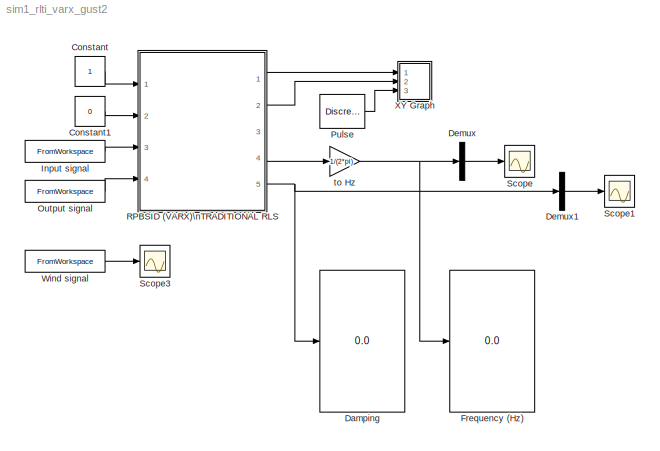
MODEL sim1_rlti_varx_gust2
KIND model
CONFIG InitFcn = load GUST2data.mat\nu = [(0:0.05:(length(u)-1)*0.05)' u'];\ny = [(0:0.05:(length(u)-1)*0.05)' y'];\nvw = [(0:0.05:(length(u)-1)*0.05)' vw'];\nload GUST2weight_f50.mat\nW = W0;
BLOCK [Constant] Constant
  OutDataType = fixdt(1, 16)
  OutScaling = 2^0
  SID = 2
BLOCK [Constant] Constant1
  OutDataType = fixdt(1, 16)
  OutScaling = 2^0
  SID = 25
  Value = 0
BLOCK [Display] Damping
  Decimation = 1
  Lockdown = off
  Ports = [1]
  SID = 6
BLOCK [Demux] Demux
  DisplayOption = bar
  Outputs = [3 1 3]
  Ports = [1, 3]
  SID = 11
BLOCK [Demux] Demux1
  DisplayOption = bar
  Outputs = [3 1 3]
  Ports = [1, 3]
  SID = 12
BLOCK [Display] Frequency (Hz)
  Decimation = 1
  Lockdown = off
  Ports = [1]
  SID = 7
BLOCK [FromWorkspace] Input signal
  OutputAfterFinalValue = Setting to zero
  SID = 3
  SampleTime = 0.05
  VariableName = u
  ZeroCross = on
BLOCK [FromWorkspace] Output signal
  OutputAfterFinalValue = Setting to zero
  SID = 4
  SampleTime = 0.05
  VariableName = y
  ZeroCross = on
BLOCK [DiscretePulseGenerator] Pulse
  Amplitude = 1
  Period = 15
  PhaseDelay = 0
  Ports = [0, 1]
  PulseType = Time based
  PulseWidth = 50
  SID = 17
  SampleTime = 1
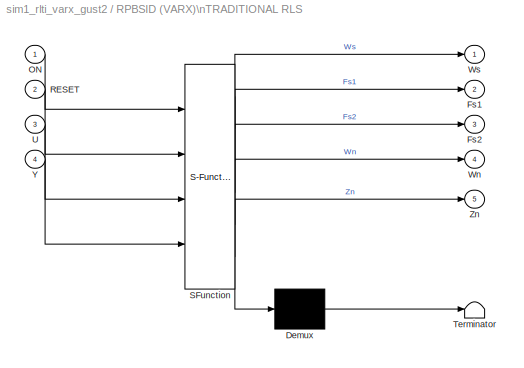
BLOCK [SubSystem] RPBSID (VARX)\nTRADITIONAL RLS
  FunctionWithSeparateData = off
  MaskDescription = Embedded MATLAB block
  MaskDisplay = disp('rpbsid');
  MaskHideContents = off
  MaskIconFrame = on
  MaskIconOpaque = off
  MaskIconRotate = none
  MaskIconUnits = autoscale
  MaskPortRotate = default
  MaskSelfModifiable = on
  MaskType = Stateflow
  MinAlgLoopOccurrences = off
  Opaque = off
  PermitHierarchicalResolution = ExplicitOnly
  Ports = [4, 5]
  PropExecContextOutsideSubsystem = off
  RTWSystemCode = Auto
  RequestExecContextInheritance = off
  SID = 1
BLOCK [Demux] RPBSID (VARX)\nTRADITIONAL RLS/ Demux 
  Outputs = 1
  Ports = [1, 1]
  SID = 19
BLOCK [S-Function] RPBSID (VARX)\nTRADITIONAL RLS/ SFunction 
  EnableBusSupport = on
  FunctionName = sf_sfun
  Parameters = Du,Dy,W
  PortCounts = [4 6]
  Ports = [4, 6]
  SID = 18
  Tag = Stateflow S-Function sim1_rlti_varx_gust2 2
BLOCK [Terminator] RPBSID (VARX)\nTRADITIONAL RLS/ Terminator 
  SID = 21
BLOCK [Outport] RPBSID (VARX)\nTRADITIONAL RLS/Fs1
  IconDisplay = Port number
  Port = 2
  SID = 10
BLOCK [Outport] RPBSID (VARX)\nTRADITIONAL RLS/Fs2
  IconDisplay = Port number
  Port = 3
  SID = 11
BLOCK [Inport] RPBSID (VARX)\nTRADITIONAL RLS/ON
  IconDisplay = Port number
  SID = 24
BLOCK [Inport] RPBSID (VARX)\nTRADITIONAL RLS/RESET
  IconDisplay = Port number
  Port = 2
  SID = 26
BLOCK [Inport] RPBSID (VARX)\nTRADITIONAL RLS/U
  IconDisplay = Port number
  OutDataType = sfix(16)
  OutScaling = 2^0
  Port = 3
  SID = 1
BLOCK [Outport] RPBSID (VARX)\nTRADITIONAL RLS/Wn
  IconDisplay = Port number
  OutDataType = sfix(16)
  OutScaling = 2^0
  Port = 4
  SID = 12
BLOCK [Outport] RPBSID (VARX)\nTRADITIONAL RLS/Ws
  IconDisplay = Port number
  SID = 9
BLOCK [Inport] RPBSID (VARX)\nTRADITIONAL RLS/Y
  IconDisplay = Port number
  OutDataType = sfix(16)
  OutScaling = 2^0
  Port = 4
  SID = 2
BLOCK [Outport] RPBSID (VARX)\nTRADITIONAL RLS/Zn
  IconDisplay = Port number
  OutDataType = sfix(16)
  OutScaling = 2^0
  Port = 5
  SID = 13
BLOCK [Scope] Scope
  DataFormat = StructureWithTime
  Floating = off
  NumInputPorts = 1
  Ports = [1]
  SID = 9
  SampleTime = 0
  YMax = 140
  YMin = 0
BLOCK [Scope] Scope1
  DataFormat = StructureWithTime
  Floating = off
  NumInputPorts = 1
  Ports = [1]
  SID = 13
  SampleTime = 0
  SaveName = ScopeData1
  YMax = 1
  YMin = -0.2
  ZoomMode = yonly
BLOCK [Scope] Scope3
  DataFormat = StructureWithTime
  Floating = off
  NumInputPorts = 1
  Ports = [1]
  SID = 21
  SampleTime = 0
  SaveName = ScopeData3
  TimeRange = 2000
  YMax = 14
  YMin = 7.5
BLOCK [FromWorkspace] Wind signal
  OutputAfterFinalValue = Setting to zero
  SID = 22
  SampleTime = 0.05
  VariableName = vw
  ZeroCross = on
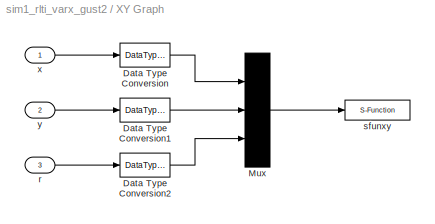
BLOCK [SubSystem] XY Graph
  AncestorBlock = simulink/Sinks/XY Graph
  CopyFcn = sfunxy([],[],[],'CopyBlock')
  DeleteFcn = sfunxy([],[],[],'DeleteBlock')
  FunctionWithSeparateData = off
  LoadFcn = sfunxy([],[],[],'LoadBlock')
  MaskCallbackString = ||||
  MaskCapabilities = slmaskedcaps(gcbh)
  MaskDescription = Plots second input (Y) against first input (X) at each time step to  create an X-Y plot. Ignores data outside the ranges specified by x-min, x-max, y-min, y-max.
  MaskDisplay = plot([.05 .95 .95 .05 .05],[.45 .45 .95 .95 .45], 0.5+cos(0:0.1:2*pi)*0.3,0.7+sin(0:0.1:2*pi)*0.2)
  MaskEnableString = on,on,on,on,on
  MaskHelp = This block can be used to explore limit cycles. Look at the m-file sfunxy.m to see how it works.
  MaskHideContents = off
  MaskIconFrame = on
  MaskIconOpaque = on
  MaskIconRotate = none
  MaskIconUnits = normalized
  MaskPortRotate = default
  MaskPromptString = x-min:|x-max:|y-min:|y-max:|Sample time:
  MaskSelfModifiable = on
  MaskStyleString = edit,edit,edit,edit,edit
  MaskToolTipString = on,on,on,on,on
  MaskTunableValueString = on,on,on,on,on
  MaskType = XY scope.
  MaskValueString = -1|1|-70|-20|-1
  MaskVariables = xmin=@1;xmax=@2;ymin=@3;ymax=@4;st=@5;
  MaskVisibilityString = on,on,on,on,on
  MinAlgLoopOccurrences = off
  NameChangeFcn = sfunxy([],[],[],'NameChange')
  Opaque = off
  Ports = [3]
  PropExecContextOutsideSubsystem = off
  RTWSystemCode = Auto
  RequestExecContextInheritance = off
  SID = 19
  SimViewingDevice = on
  StartFcn = sfunxy([],[],[],'Start')
  StopFcn = sfunxy([],[],[],'Stop')
  TreatAsAtomicUnit = on
BLOCK [DataTypeConversion] XY Graph/Data Type Conversion
  DisableCoverage = on
  OutDataType = fixdt(1, 16)
  OutDataTypeMode = double
  OutDataTypeStr = double
  OutScaling = 2^0
  RndMeth = Floor
  SID = 4
  SaturateOnIntegerOverflow = off
BLOCK [DataTypeConversion] XY Graph/Data Type Conversion1
  DisableCoverage = on
  OutDataType = fixdt(1, 16)
  OutDataTypeMode = double
  OutDataTypeStr = double
  OutScaling = 2^0
  RndMeth = Floor
  SID = 5
  SaturateOnIntegerOverflow = off
BLOCK [DataTypeConversion] XY Graph/Data Type Conversion2
  DisableCoverage = on
  OutDataType = fixdt(1, 16)
  OutDataTypeMode = double
  OutDataTypeStr = double
  OutScaling = 2^0
  RndMeth = Floor
  SID = 6
  SaturateOnIntegerOverflow = off
BLOCK [Mux] XY Graph/Mux
  Inputs = 3
  Ports = [3, 1]
  SID = 7
BLOCK [Inport] XY Graph/r
  IconDisplay = Port number
  OutDataType = fixdt(1, 16)
  OutScaling = 2^0
  Port = 3
  SID = 3
BLOCK [S-Function] XY Graph/sfunxy
  DisableCoverage = on
  EnableBusSupport = off
  FunctionName = sfun_xygraph
  Parameters = [xmin xmax ymin ymax], st
  Ports = [1]
  SID = 8
BLOCK [Inport] XY Graph/x
  IconDisplay = Port number
  OutDataType = fixdt(1, 16)
  OutScaling = 2^0
  SID = 1
BLOCK [Inport] XY Graph/y
  IconDisplay = Port number
  OutDataType = fixdt(1, 16)
  OutScaling = 2^0
  Port = 2
  SID = 2
BLOCK [Gain] to Hz
  Gain = 1/(2*pi)
  OutDataType = fixdt(1, 16)
  OutDataTypeMode = Inherit via internal rule
  OutDataTypeStr = Inherit: Inherit via internal rule
  OutScaling = 2^0
  ParamDataTypeStr = Inherit: Inherit via internal rule
  ParameterDataType = fixdt(1, 16)
  ParameterDataTypeMode = Inherit via internal rule
  ParameterScaling = 2^0
  SID = 23
  SaturateOnIntegerOverflow = off
LINE Constant1:1 -> RPBSID (VARX)\nTRADITIONAL RLS:2
LINE Constant:1 -> RPBSID (VARX)\nTRADITIONAL RLS:1
LINE Demux1:2 -> Scope1:1
LINE Demux:2 -> Scope:1
LINE Input signal:1 -> RPBSID (VARX)\nTRADITIONAL RLS:3
LINE Output signal:1 -> RPBSID (VARX)\nTRADITIONAL RLS:4
LINE Pulse:1 -> XY Graph:3
LINE RPBSID (VARX)\nTRADITIONAL RLS/ Demux :1 -> RPBSID (VARX)\nTRADITIONAL RLS/ Terminator :1
LINE RPBSID (VARX)\nTRADITIONAL RLS/ SFunction :1 -> RPBSID (VARX)\nTRADITIONAL RLS/ Demux :1
LINE RPBSID (VARX)\nTRADITIONAL RLS/ SFunction :2 -> RPBSID (VARX)\nTRADITIONAL RLS/Ws:1
LINE RPBSID (VARX)\nTRADITIONAL RLS/ SFunction :3 -> RPBSID (VARX)\nTRADITIONAL RLS/Fs1:1
LINE RPBSID (VARX)\nTRADITIONAL RLS/ SFunction :4 -> RPBSID (VARX)\nTRADITIONAL RLS/Fs2:1
LINE RPBSID (VARX)\nTRADITIONAL RLS/ SFunction :5 -> RPBSID (VARX)\nTRADITIONAL RLS/Wn:1
LINE RPBSID (VARX)\nTRADITIONAL RLS/ SFunction :6 -> RPBSID (VARX)\nTRADITIONAL RLS/Zn:1
LINE RPBSID (VARX)\nTRADITIONAL RLS/ON:1 -> RPBSID (VARX)\nTRADITIONAL RLS/ SFunction :1
LINE RPBSID (VARX)\nTRADITIONAL RLS/RESET:1 -> RPBSID (VARX)\nTRADITIONAL RLS/ SFunction :2
LINE RPBSID (VARX)\nTRADITIONAL RLS/U:1 -> RPBSID (VARX)\nTRADITIONAL RLS/ SFunction :3
LINE RPBSID (VARX)\nTRADITIONAL RLS/Y:1 -> RPBSID (VARX)\nTRADITIONAL RLS/ SFunction :4
LINE RPBSID (VARX)\nTRADITIONAL RLS:1 -> XY Graph:1
LINE RPBSID (VARX)\nTRADITIONAL RLS:2 -> XY Graph:2
LINE RPBSID (VARX)\nTRADITIONAL RLS:4 -> to Hz:1
NET RPBSID (VARX)\nTRADITIONAL RLS:5 -> Damping:1, Demux1:1
LINE Wind signal:1 -> Scope3:1
LINE XY Graph/Data Type Conversion1:1 -> XY Graph/Mux:2
LINE XY Graph/Data Type Conversion2:1 -> XY Graph/Mux:3
LINE XY Graph/Data Type Conversion:1 -> XY Graph/Mux:1
LINE XY Graph/Mux:1 -> XY Graph/sfunxy:1
LINE XY Graph/r:1 -> XY Graph/Data Type Conversion2:1
LINE XY Graph/x:1 -> XY Graph/Data Type Conversion:1
LINE XY Graph/y:1 -> XY Graph/Data Type Conversion1:1
NET to Hz:1 -> Demux:1, Frequency (Hz):1
note: NET lines group one-source signal fan-out (src -> all destinations, sorted); 1:1 wires keep LINE
CHART RPBSID (VARX)\nTRADITIONAL RLS states=1 transitions=1
  STATE_LABEL 'eML_blk_kernel()'
